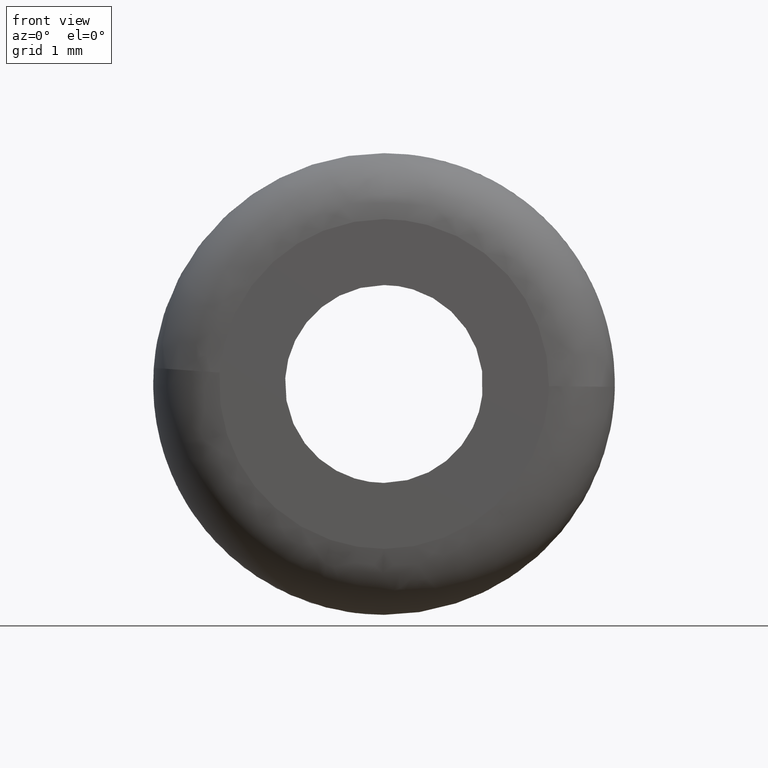
[diagram: clean part render]
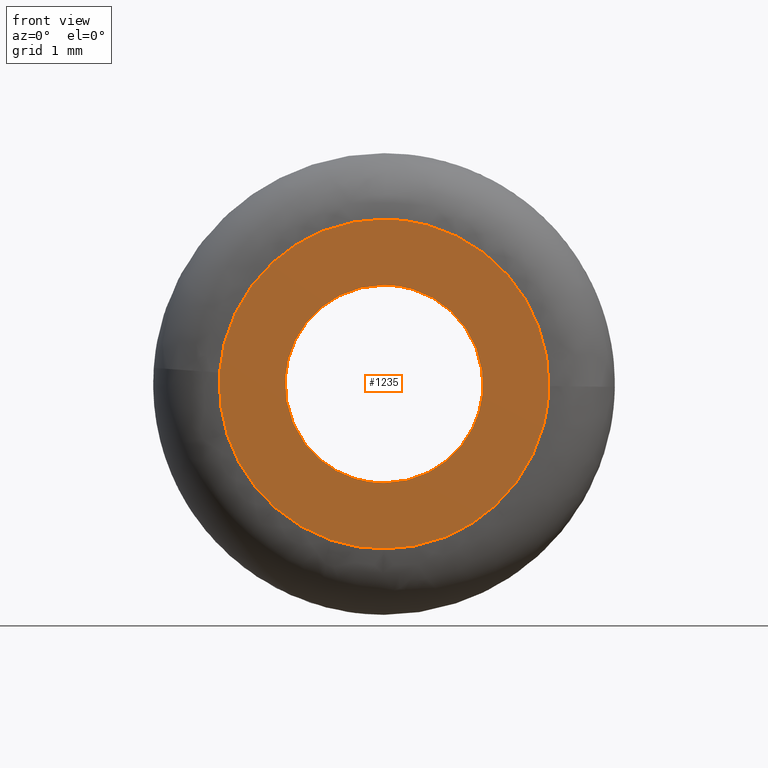
[diagram: same view with one face highlighted and labeled with its STEP entity id]
A machine part, front view. The second image highlights one B-rep face of the part: STEP entity #1235.
In plain terms, the highlighted face is a freeform B-spline surface patch.
Its self-contained STEP definition (entity closure, byte-faithful):
#707=CARTESIAN_POINT('',(1.489514362852228,-2.868382E-016,-0.177050735261209));
#708=VERTEX_POINT('',#707);
#714=CARTESIAN_POINT('',(0.0,-2.755364E-016,1.500000000000000));
#715=VERTEX_POINT('',#714);
#716=CARTESIAN_POINT('',(1.489514362852228,-2.868382E-016,-0.177050735261209));
#717=CARTESIAN_POINT('',(1.500000000000000,-2.755364E-016,-0.088835556234056));
#718=CARTESIAN_POINT('',(1.500000000000000,-2.755364E-016,-3.061516E-016));
#719=CARTESIAN_POINT('',(1.500000000000000,-2.755364E-016,1.500000000000000));
#720=CARTESIAN_POINT('',(0.0,-2.755364E-016,1.500000000000000));
#728=(BOUNDED_CURVE()B_SPLINE_CURVE(2,(#716,#717,#718,#719,#720),.UNSPECIFIED.,.F.,.U.)B_SPLINE_CURVE_WITH_KNOTS((3,2,3),(0.229562613465102,0.250000000000000,0.500000000000000),.UNSPECIFIED.)CURVE()GEOMETRIC_REPRESENTATION_ITEM()RATIONAL_B_SPLINE_CURVE((0.956027028494733,0.976056112294636,1.0,0.707106781186548,1.0))REPRESENTATION_ITEM(''));
#729=EDGE_CURVE('',#708,#715,#728,.T.);
#731=CARTESIAN_POINT('',(-1.497202332087954,3.570413E-017,0.091570610926976));
#732=VERTEX_POINT('',#731);
#733=CARTESIAN_POINT('',(0.0,-2.755364E-016,1.500000000000000));
#734=CARTESIAN_POINT('',(-1.411061176120985,-2.755364E-016,1.500000000000000));
#735=CARTESIAN_POINT('',(-1.497202332087955,3.570413E-017,0.091570610926976));
#743=(BOUNDED_CURVE()B_SPLINE_CURVE(2,(#733,#734,#735),.UNSPECIFIED.,.F.,.U.)B_SPLINE_CURVE_WITH_KNOTS((3,3),(0.500000000000000,0.739333215596308),.UNSPECIFIED.)CURVE()GEOMETRIC_REPRESENTATION_ITEM()RATIONAL_B_SPLINE_CURVE((1.0,0.719603696460094,0.976072584660381))REPRESENTATION_ITEM(''));
#744=EDGE_CURVE('',#715,#732,#743,.T.);
#818=CARTESIAN_POINT('',(0.0,-2.755364E-016,-1.500000000000000));
#819=VERTEX_POINT('',#818);
#820=CARTESIAN_POINT('',(-1.497202332087955,3.570413E-017,0.091570610926976));
#821=CARTESIAN_POINT('',(-1.500000000000000,-2.755364E-016,0.045828042678337));
#822=CARTESIAN_POINT('',(-1.500000000000000,-2.755364E-016,-3.061516E-016));
#823=CARTESIAN_POINT('',(-1.500000000000000,-2.755364E-016,-1.500000000000000));
#824=CARTESIAN_POINT('',(0.0,-2.755364E-016,-1.500000000000000));
#832=(BOUNDED_CURVE()B_SPLINE_CURVE(2,(#820,#821,#822,#823,#824),.UNSPECIFIED.,.F.,.U.)B_SPLINE_CURVE_WITH_KNOTS((3,2,3),(0.739333215596308,0.750000000000000,1.0),.UNSPECIFIED.)CURVE()GEOMETRIC_REPRESENTATION_ITEM()RATIONAL_B_SPLINE_CURVE((0.976072584660381,0.987503084726454,1.0,0.707106781186548,1.0))REPRESENTATION_ITEM(''));
#833=EDGE_CURVE('',#732,#819,#832,.T.);
#835=CARTESIAN_POINT('',(0.0,-2.755364E-016,-1.500000000000000));
#836=CARTESIAN_POINT('',(1.332262899922851,-2.755364E-016,-1.500000000000000));
#837=CARTESIAN_POINT('',(1.489514362852228,-2.868382E-016,-0.177050735261209));
#845=(BOUNDED_CURVE()B_SPLINE_CURVE(2,(#835,#836,#837),.UNSPECIFIED.,.F.,.U.)B_SPLINE_CURVE_WITH_KNOTS((3,3),(0.0,0.229562613465102),.UNSPECIFIED.)CURVE()GEOMETRIC_REPRESENTATION_ITEM()RATIONAL_B_SPLINE_CURVE((1.0,0.731050668891912,0.956027028494733))REPRESENTATION_ITEM(''));
#846=EDGE_CURVE('',#819,#708,#845,.T.);
#1041=CARTESIAN_POINT('',(2.499802610520170,-2.537659E-017,-0.031415099709199));
#1042=VERTEX_POINT('',#1041);
#1056=CARTESIAN_POINT('',(0.0,-4.592274E-016,-2.500000000000000));
#1057=VERTEX_POINT('',#1056);
#1058=CARTESIAN_POINT('',(0.0,-4.592274E-016,-2.500000000000000));
#1059=CARTESIAN_POINT('',(2.468779824766935,-4.592274E-016,-2.500000000000000));
#1060=CARTESIAN_POINT('',(2.499802610520170,-2.537659E-017,-0.031415099709199));
#1068=(BOUNDED_CURVE()B_SPLINE_CURVE(2,(#1058,#1059,#1060),.UNSPECIFIED.,.F.,.U.)B_SPLINE_CURVE_WITH_KNOTS((3,3),(0.0,0.247784295921632),.UNSPECIFIED.)CURVE()GEOMETRIC_REPRESENTATION_ITEM()RATIONAL_B_SPLINE_CURVE((1.0,0.709702639984353,0.994854295643791))REPRESENTATION_ITEM(''));
#1069=EDGE_CURVE('',#1057,#1042,#1068,.T.);
#1071=CARTESIAN_POINT('',(-2.493914184636278,-2.067672E-017,0.174333128946536));
#1072=VERTEX_POINT('',#1071);
#1073=CARTESIAN_POINT('',(-2.493914184636278,-2.067672E-017,0.174333128946536));
#1074=CARTESIAN_POINT('',(-2.500000000000000,-4.592274E-016,0.087272789692242));
#1075=CARTESIAN_POINT('',(-2.500000000000000,-4.592274E-016,-3.061516E-016));
#1076=CARTESIAN_POINT('',(-2.500000000000000,-4.592274E-016,-2.500000000000000));
#1077=CARTESIAN_POINT('',(0.0,-4.592274E-016,-2.500000000000000));
#1085=(BOUNDED_CURVE()B_SPLINE_CURVE(2,(#1073,#1074,#1075,#1076,#1077),.UNSPECIFIED.,.F.,.U.)B_SPLINE_CURVE_WITH_KNOTS((3,2,3),(0.737833686534384,0.750000000000000,1.0),.UNSPECIFIED.)CURVE()GEOMETRIC_REPRESENTATION_ITEM()RATIONAL_B_SPLINE_CURVE((0.972879876385479,0.985746277151849,1.0,0.707106781186548,1.0))REPRESENTATION_ITEM(''));
#1086=EDGE_CURVE('',#1072,#1057,#1085,.T.);
#1129=CARTESIAN_POINT('',(0.0,-4.592274E-016,2.500000000000000));
#1130=VERTEX_POINT('',#1129);
#1131=CARTESIAN_POINT('',(0.0,-4.592274E-016,2.500000000000000));
#1132=CARTESIAN_POINT('',(-2.331342118156340,-4.592274E-016,2.500000000000000));
#1133=CARTESIAN_POINT('',(-2.493914184636279,-2.067672E-017,0.174333128946536));
#1141=(BOUNDED_CURVE()B_SPLINE_CURVE(2,(#1131,#1132,#1133),.UNSPECIFIED.,.F.,.U.)B_SPLINE_CURVE_WITH_KNOTS((3,3),(0.500000000000000,0.737833686534383),.UNSPECIFIED.)CURVE()GEOMETRIC_REPRESENTATION_ITEM()RATIONAL_B_SPLINE_CURVE((1.0,0.721360504034699,0.972879876385478))REPRESENTATION_ITEM(''));
#1142=EDGE_CURVE('',#1130,#1072,#1141,.T.);
#1144=CARTESIAN_POINT('',(2.499802610520170,-2.537659E-017,-0.031415099709199));
#1145=CARTESIAN_POINT('',(2.500000000000000,-4.592274E-016,-0.015708169980409));
#1146=CARTESIAN_POINT('',(2.500000000000000,-4.592274E-016,-3.061516E-016));
#1147=CARTESIAN_POINT('',(2.500000000000000,-4.592274E-016,2.500000000000000));
#1148=CARTESIAN_POINT('',(0.0,-4.592274E-016,2.500000000000000));
#1156=(BOUNDED_CURVE()B_SPLINE_CURVE(2,(#1144,#1145,#1146,#1147,#1148),.UNSPECIFIED.,.F.,.U.)B_SPLINE_CURVE_WITH_KNOTS((3,2,3),(0.247784295921632,0.250000000000000,0.500000000000000),.UNSPECIFIED.)CURVE()GEOMETRIC_REPRESENTATION_ITEM()RATIONAL_B_SPLINE_CURVE((0.994854295643791,0.997404141202195,1.0,0.707106781186548,1.0))REPRESENTATION_ITEM(''));
#1157=EDGE_CURVE('',#1042,#1130,#1156,.T.);
#1218=CARTESIAN_POINT('',(-2.749440738688285,-3.673819E-016,-2.749749990309030));
#1219=CARTESIAN_POINT('',(-2.749440738688285,-3.673819E-016,2.749750124419480));
#1220=CARTESIAN_POINT('',(2.749528632141366,-3.673819E-016,-2.749749990309030));
#1221=CARTESIAN_POINT('',(2.749528632141366,-3.673819E-016,2.749750124419480));
#1222=B_SPLINE_SURFACE_WITH_KNOTS('',1,1,((#1218,#1220),(#1219,#1221)),.UNSPECIFIED.,.F.,.F.,.U.,(2,2),(2,2),(0.0,5.499500114728511),(0.0,5.498969370829650),.UNSPECIFIED.);
#1223=ORIENTED_EDGE('',*,*,#1069,.T.);
#1224=ORIENTED_EDGE('',*,*,#1157,.T.);
#1225=ORIENTED_EDGE('',*,*,#1142,.T.);
#1226=ORIENTED_EDGE('',*,*,#1086,.T.);
#1227=EDGE_LOOP('',(#1223,#1224,#1225,#1226));
#1228=FACE_OUTER_BOUND('',#1227,.T.);
#1229=ORIENTED_EDGE('',*,*,#744,.F.);
#1230=ORIENTED_EDGE('',*,*,#729,.F.);
#1231=ORIENTED_EDGE('',*,*,#846,.F.);
#1232=ORIENTED_EDGE('',*,*,#833,.F.);
#1233=EDGE_LOOP('',(#1229,#1230,#1231,#1232));
#1234=FACE_BOUND('',#1233,.T.);
#1235=ADVANCED_FACE('',(#1228,#1234),#1222,.F.);